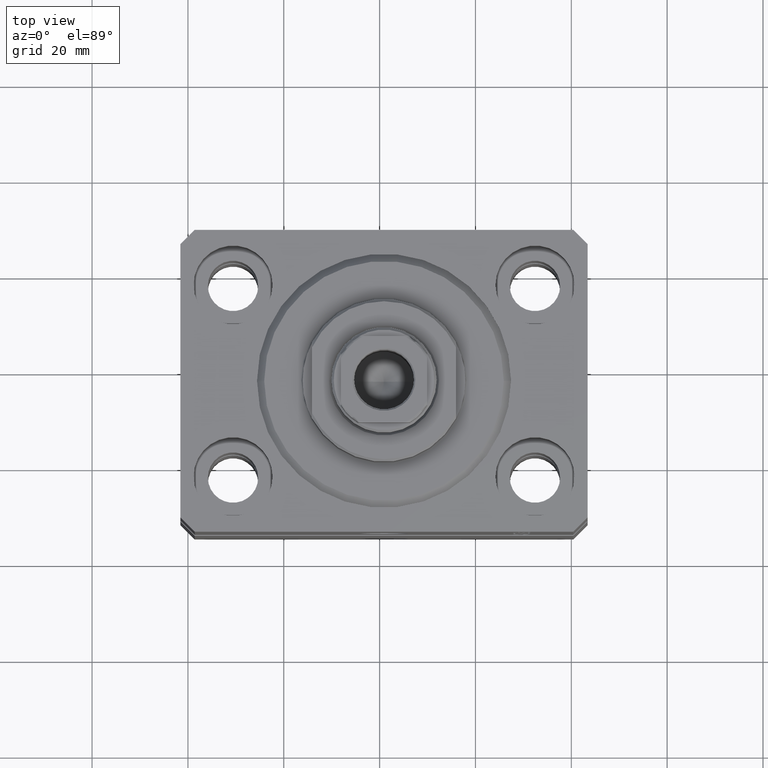
[diagram: clean part render]
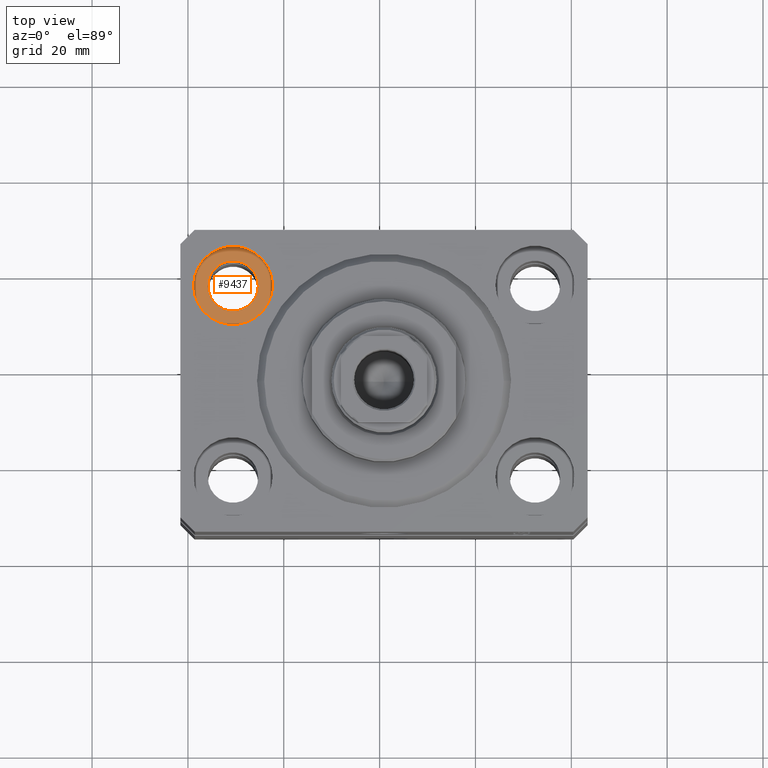
[diagram: same view with one face highlighted and labeled with its STEP entity id]
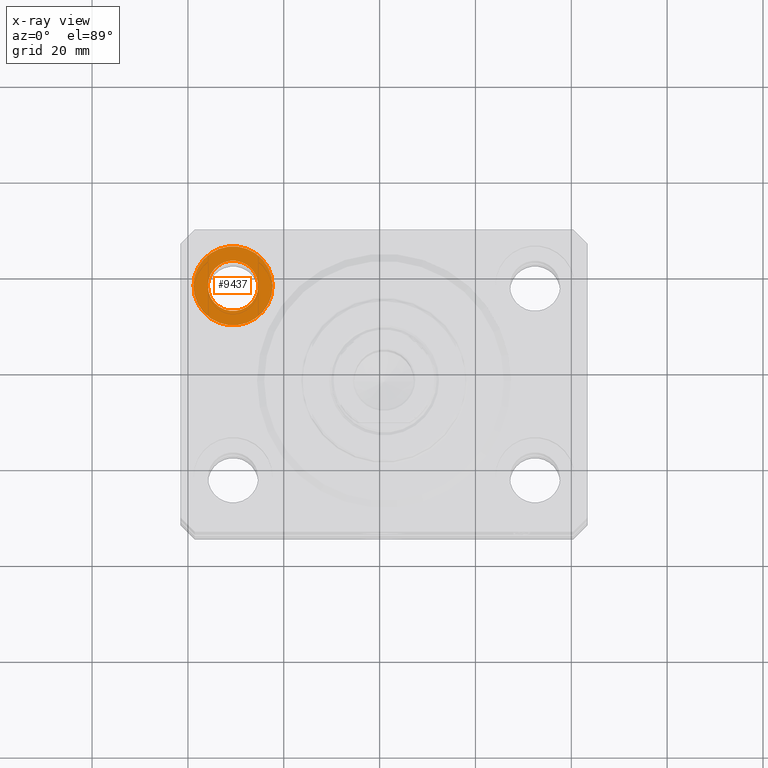
[diagram: x-ray of the same camera — body ghosted, the highlighted face saturated]
A machine part, top view. The second image highlights one B-rep face of the part: STEP entity #9437.
The next image is the same camera in x-ray: the body ghosted, the highlighted face saturated — about 0% of this face is hidden behind the body in this view.
In plain terms, the highlighted planar face has unit normal (0, 0, 1).
Its self-contained STEP definition (entity closure, byte-faithful):
#1063 = AXIS2_PLACEMENT_3D ( 'NONE', #11852, #25842, #33419 ) ;
#2400 = CARTESIAN_POINT ( 'NONE',  ( -23.25000000000000000, 20.00000000000000000, -11.00000000000000000 ) ) ;
#3341 = DIRECTION ( 'NONE',  ( 1.000000000000000000, 0.000000000000000000, -0.000000000000000000 ) ) ;
#3628 = CIRCLE ( 'NONE', #31476, 8.250000000000000000 ) ;
#3639 = EDGE_CURVE ( 'NONE', #9431, #42584, #9902, .T. ) ;
#8035 = DIRECTION ( 'NONE',  ( 0.000000000000000000, 0.000000000000000000, 1.000000000000000000 ) ) ;
#9431 = VERTEX_POINT ( 'NONE', #23996 ) ;
#9437 = ADVANCED_FACE ( 'NONE', ( #31338, #34774 ), #10238, .T. ) ;
#9902 = CIRCLE ( 'NONE', #1063, 8.250000000000000000 ) ;
#10238 = PLANE ( 'NONE',  #42870 ) ;
#11852 = CARTESIAN_POINT ( 'NONE',  ( -31.50000000000000000, 20.00000000000000000, -11.00000000000000000 ) ) ;
#11910 = CIRCLE ( 'NONE', #30220, 5.250000000000000888 ) ;
#13954 = CIRCLE ( 'NONE', #30064, 5.250000000000000888 ) ;
#15454 = VERTEX_POINT ( 'NONE', #34205 ) ;
#18638 = DIRECTION ( 'NONE',  ( 1.000000000000000000, 0.000000000000000000, 0.000000000000000000 ) ) ;
#18807 = DIRECTION ( 'NONE',  ( 1.000000000000000000, 0.000000000000000000, 0.000000000000000000 ) ) ;
#20421 = EDGE_LOOP ( 'NONE', ( #42232, #40274 ) ) ;
#22240 = CARTESIAN_POINT ( 'NONE',  ( -31.50000000000000000, 20.00000000000000000, -11.00000000000000000 ) ) ;
#22466 = DIRECTION ( 'NONE',  ( 0.000000000000000000, 0.000000000000000000, 1.000000000000000000 ) ) ;
#23996 = CARTESIAN_POINT ( 'NONE',  ( -39.75000000000000000, 20.00000000000000000, -11.00000000000000000 ) ) ;
#24208 = ORIENTED_EDGE ( 'NONE', *, *, #3639, .T. ) ;
#24220 = CARTESIAN_POINT ( 'NONE',  ( -31.50000000000000000, 20.00000000000000000, -11.00000000000000000 ) ) ;
#25842 = DIRECTION ( 'NONE',  ( 0.000000000000000000, 0.000000000000000000, 1.000000000000000000 ) ) ;
#26442 = DIRECTION ( 'NONE',  ( 0.000000000000000000, 0.000000000000000000, 1.000000000000000000 ) ) ;
#26582 = EDGE_CURVE ( 'NONE', #42584, #9431, #3628, .T. ) ;
#29265 = EDGE_CURVE ( 'NONE', #35162, #15454, #13954, .T. ) ;
#30064 = AXIS2_PLACEMENT_3D ( 'NONE', #22240, #22466, #18807 ) ;
#30220 = AXIS2_PLACEMENT_3D ( 'NONE', #33330, #26442, #18638 ) ;
#31338 = FACE_BOUND ( 'NONE', #20421, .T. ) ;
#31476 = AXIS2_PLACEMENT_3D ( 'NONE', #39462, #8035, #32604 ) ;
#31906 = ORIENTED_EDGE ( 'NONE', *, *, #26582, .T. ) ;
#32604 = DIRECTION ( 'NONE',  ( 1.000000000000000000, 0.000000000000000000, 0.000000000000000000 ) ) ;
#33330 = CARTESIAN_POINT ( 'NONE',  ( -31.50000000000000000, 20.00000000000000000, -11.00000000000000000 ) ) ;
#33419 = DIRECTION ( 'NONE',  ( 1.000000000000000000, 0.000000000000000000, 0.000000000000000000 ) ) ;
#33581 = EDGE_LOOP ( 'NONE', ( #31906, #24208 ) ) ;
#34205 = CARTESIAN_POINT ( 'NONE',  ( -26.25000000000000000, 20.00000000000000000, -11.00000000000000000 ) ) ;
#34774 = FACE_OUTER_BOUND ( 'NONE', #33581, .T. ) ;
#35162 = VERTEX_POINT ( 'NONE', #44801 ) ;
#38202 = DIRECTION ( 'NONE',  ( 0.000000000000000000, 0.000000000000000000, 1.000000000000000000 ) ) ;
#38680 = EDGE_CURVE ( 'NONE', #15454, #35162, #11910, .T. ) ;
#39462 = CARTESIAN_POINT ( 'NONE',  ( -31.50000000000000000, 20.00000000000000000, -11.00000000000000000 ) ) ;
#40274 = ORIENTED_EDGE ( 'NONE', *, *, #29265, .F. ) ;
#42232 = ORIENTED_EDGE ( 'NONE', *, *, #38680, .F. ) ;
#42584 = VERTEX_POINT ( 'NONE', #2400 ) ;
#42870 = AXIS2_PLACEMENT_3D ( 'NONE', #24220, #38202, #3341 ) ;
#44801 = CARTESIAN_POINT ( 'NONE',  ( -36.75000000000000000, 20.00000000000000000, -11.00000000000000000 ) ) ;